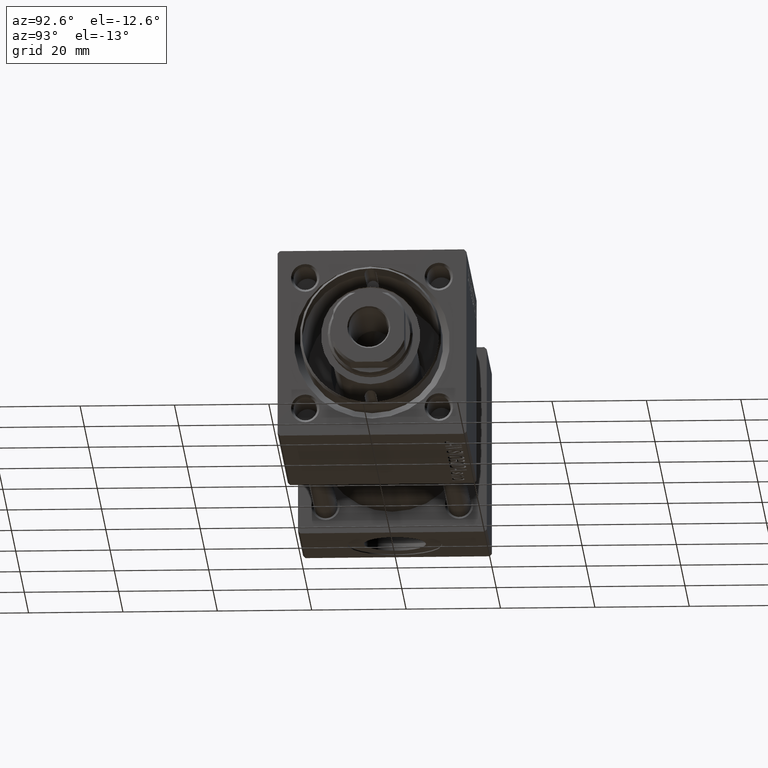
[diagram: clean part render]
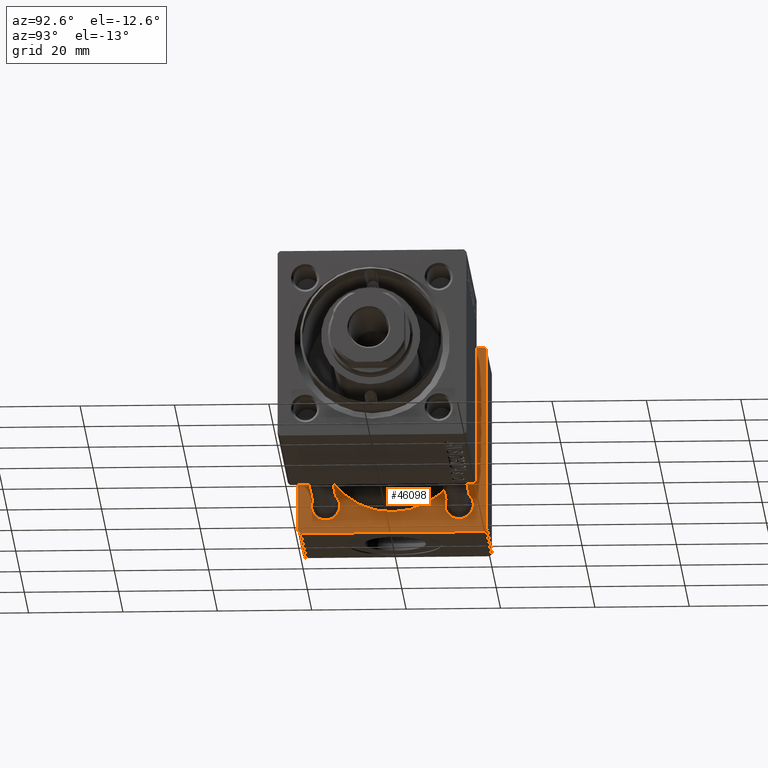
[diagram: same view with one face highlighted and labeled with its STEP entity id]
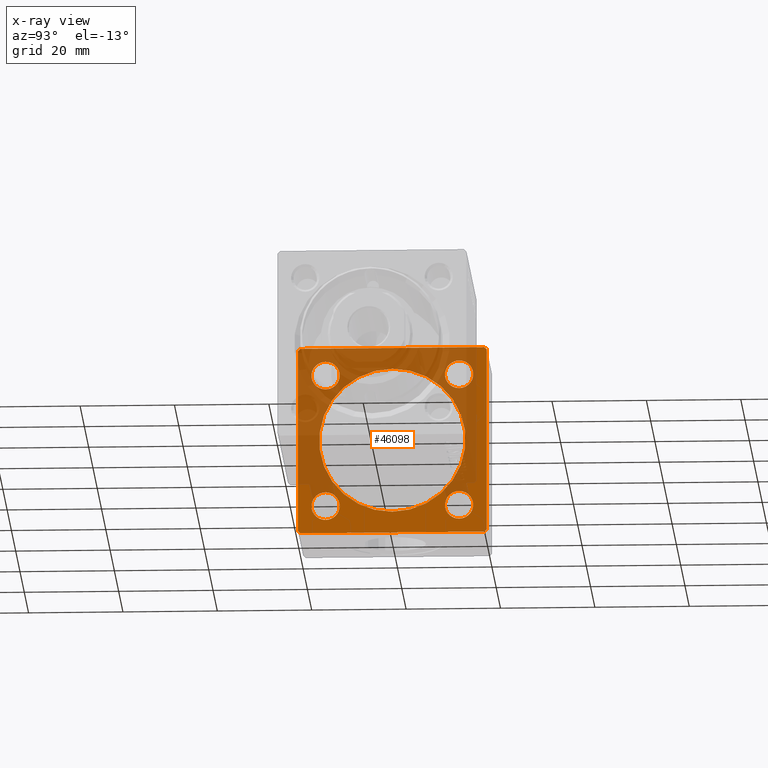
[diagram: x-ray of the same camera — body ghosted, the highlighted face saturated]
A machine part, auxiliary view. The second image highlights one B-rep face of the part: STEP entity #46098.
The next image is the same camera in x-ray: the body ghosted, the highlighted face saturated — about 58% of this face is hidden behind the body in this view.
In plain terms, the highlighted planar face has unit normal (-1, 0, 0).
Its self-contained STEP definition (entity closure, byte-faithful):
#34 = LINE ( 'NONE', #50561, #6078 ) ;
#127 = ORIENTED_EDGE ( 'NONE', *, *, #21536, .T. ) ;
#406 = CARTESIAN_POINT ( 'NONE',  ( 24.00000000000000000, -2.602085213965210642E-15, 0.000000000000000000 ) ) ;
#466 = DIRECTION ( 'NONE',  ( 0.000000000000000000, 0.000000000000000000, -1.000000000000000000 ) ) ;
#601 = EDGE_CURVE ( 'NONE', #17372, #18268, #19815, .T. ) ;
#987 = FACE_BOUND ( 'NONE', #42098, .T. ) ;
#1795 = VECTOR ( 'NONE', #466, 1000.000000000000000 ) ;
#1876 = ORIENTED_EDGE ( 'NONE', *, *, #46301, .F. ) ;
#2228 = ORIENTED_EDGE ( 'NONE', *, *, #38815, .F. ) ;
#3173 = VERTEX_POINT ( 'NONE', #29959 ) ;
#3317 = DIRECTION ( 'NONE',  ( 1.000000000000000000, 0.000000000000000000, 0.000000000000000000 ) ) ;
#3666 = EDGE_CURVE ( 'NONE', #29226, #18973, #41905, .T. ) ;
#4264 = DIRECTION ( 'NONE',  ( 0.000000000000000000, 0.000000000000000000, 1.000000000000000000 ) ) ;
#4424 = AXIS2_PLACEMENT_3D ( 'NONE', #40751, #7679, #32872 ) ;
#5197 = PLANE ( 'NONE',  #46531 ) ;
#5611 = CARTESIAN_POINT ( 'NONE',  ( 24.00000000000000000, 14.14999999999999858, 17.14999999999997726 ) ) ;
#5848 = AXIS2_PLACEMENT_3D ( 'NONE', #15680, #31696, #11735 ) ;
#5975 = FACE_BOUND ( 'NONE', #30871, .T. ) ;
#6078 = VECTOR ( 'NONE', #20032, 1000.000000000000000 ) ;
#6337 = CARTESIAN_POINT ( 'NONE',  ( 24.00000000000000000, 19.50000000000000000, 20.00000000000000000 ) ) ;
#6348 = CARTESIAN_POINT ( 'NONE',  ( 24.00000000000000000, -14.14999999999999503, -17.15000000000000924 ) ) ;
#7093 = AXIS2_PLACEMENT_3D ( 'NONE', #406, #3317, #15429 ) ;
#7154 = VECTOR ( 'NONE', #11166, 1000.000000000000000 ) ;
#7220 = CIRCLE ( 'NONE', #51686, 3.000000000000004441 ) ;
#7679 = DIRECTION ( 'NONE',  ( 1.000000000000000000, 0.000000000000000000, 0.000000000000000000 ) ) ;
#8106 = CARTESIAN_POINT ( 'NONE',  ( 24.00000000000000000, -19.49999999999999289, 19.99999999999998934 ) ) ;
#8350 = VERTEX_POINT ( 'NONE', #5611 ) ;
#8463 = ORIENTED_EDGE ( 'NONE', *, *, #601, .F. ) ;
#8990 = EDGE_LOOP ( 'NONE', ( #41501, #26342 ) ) ;
#9334 = EDGE_CURVE ( 'NONE', #12104, #48971, #42880, .T. ) ;
#10037 = DIRECTION ( 'NONE',  ( 0.000000000000000000, 0.000000000000000000, 1.000000000000000000 ) ) ;
#10206 = CARTESIAN_POINT ( 'NONE',  ( 24.00000000000000000, -14.14999999999999503, 14.15000000000000391 ) ) ;
#10306 = CARTESIAN_POINT ( 'NONE',  ( 24.00000000000000000, -14.14999999999999503, -14.15000000000000391 ) ) ;
#10340 = CIRCLE ( 'NONE', #4424, 15.50000000000000000 ) ;
#10576 = CARTESIAN_POINT ( 'NONE',  ( 24.00000000000000000, -20.00000000000000355, 19.49999999999998224 ) ) ;
#11091 = ORIENTED_EDGE ( 'NONE', *, *, #36582, .T. ) ;
#11166 = DIRECTION ( 'NONE',  ( 0.000000000000000000, -1.000000000000000000, -2.602085213965210149E-16 ) ) ;
#11317 = EDGE_CURVE ( 'NONE', #50640, #51767, #13711, .T. ) ;
#11735 = DIRECTION ( 'NONE',  ( 0.000000000000000000, 0.000000000000000000, 1.000000000000000000 ) ) ;
#11981 = EDGE_LOOP ( 'NONE', ( #8463, #27386, #2228, #25889, #127, #34070, #48522, #11091 ) ) ;
#12104 = VERTEX_POINT ( 'NONE', #34643 ) ;
#13038 = CARTESIAN_POINT ( 'NONE',  ( 24.00000000000000000, 19.50000000000000000, 20.00000000000000000 ) ) ;
#13053 = CARTESIAN_POINT ( 'NONE',  ( 24.00000000000000000, -14.14999999999999503, -14.15000000000000391 ) ) ;
#13637 = CIRCLE ( 'NONE', #28735, 3.000000000000004441 ) ;
#13711 = LINE ( 'NONE', #6337, #27062 ) ;
#13877 = FACE_OUTER_BOUND ( 'NONE', #11981, .T. ) ;
#13978 = DIRECTION ( 'NONE',  ( 0.000000000000000000, -0.7071067811865425767, 0.7071067811865525687 ) ) ;
#14543 = CARTESIAN_POINT ( 'NONE',  ( 24.00000000000000000, -7.038826752868131828E-16, -15.50000000000000000 ) ) ;
#15429 = DIRECTION ( 'NONE',  ( 0.000000000000000000, 0.000000000000000000, 1.000000000000000000 ) ) ;
#15467 = VERTEX_POINT ( 'NONE', #49490 ) ;
#15680 = CARTESIAN_POINT ( 'NONE',  ( 24.00000000000000000, -14.14999999999999503, 14.15000000000000391 ) ) ;
#16332 = CARTESIAN_POINT ( 'NONE',  ( 24.00000000000000000, -20.00000000000000355, 19.49999999999998224 ) ) ;
#16853 = AXIS2_PLACEMENT_3D ( 'NONE', #36352, #31131, #43703 ) ;
#17070 = VECTOR ( 'NONE', #51825, 1000.000000000000000 ) ;
#17282 = CARTESIAN_POINT ( 'NONE',  ( 24.00000000000000000, 14.14999999999999858, -14.15000000000000036 ) ) ;
#17372 = VERTEX_POINT ( 'NONE', #25472 ) ;
#17540 = CARTESIAN_POINT ( 'NONE',  ( 24.00000000000000000, -19.50000000000000711, -20.00000000000000000 ) ) ;
#17550 = CARTESIAN_POINT ( 'NONE',  ( 24.00000000000000000, 20.00000000000000000, 19.49999999999999289 ) ) ;
#17709 = EDGE_CURVE ( 'NONE', #17372, #42274, #25925, .T. ) ;
#17941 = CIRCLE ( 'NONE', #23826, 2.999999999999976463 ) ;
#18007 = ORIENTED_EDGE ( 'NONE', *, *, #41113, .T. ) ;
#18056 = DIRECTION ( 'NONE',  ( -0.000000000000000000, 0.7071067811865524577, 0.7071067811865426878 ) ) ;
#18268 = VERTEX_POINT ( 'NONE', #17540 ) ;
#18299 = EDGE_CURVE ( 'NONE', #15467, #37934, #17941, .T. ) ;
#18579 = ORIENTED_EDGE ( 'NONE', *, *, #25805, .T. ) ;
#18862 = VECTOR ( 'NONE', #28928, 1000.000000000000114 ) ;
#18973 = VERTEX_POINT ( 'NONE', #43617 ) ;
#19177 = EDGE_LOOP ( 'NONE', ( #39412, #18579 ) ) ;
#19311 = LINE ( 'NONE', #16332, #18862 ) ;
#19815 = LINE ( 'NONE', #35821, #17070 ) ;
#19864 = ORIENTED_EDGE ( 'NONE', *, *, #9334, .T. ) ;
#20032 = DIRECTION ( 'NONE',  ( 0.000000000000000000, 8.673617379884036705E-17, -1.000000000000000000 ) ) ;
#20240 = VERTEX_POINT ( 'NONE', #10576 ) ;
#20268 = AXIS2_PLACEMENT_3D ( 'NONE', #10306, #38142, #10037 ) ;
#20579 = VERTEX_POINT ( 'NONE', #8106 ) ;
#20861 = CARTESIAN_POINT ( 'NONE',  ( 24.00000000000000000, 14.14999999999999858, 14.15000000000000036 ) ) ;
#21226 = DIRECTION ( 'NONE',  ( -1.000000000000000000, -0.000000000000000000, -0.000000000000000000 ) ) ;
#21536 = EDGE_CURVE ( 'NONE', #51767, #20579, #31115, .T. ) ;
#22297 = DIRECTION ( 'NONE',  ( -1.000000000000000000, -0.000000000000000000, -0.000000000000000000 ) ) ;
#22349 = LINE ( 'NONE', #30484, #31217 ) ;
#23826 = AXIS2_PLACEMENT_3D ( 'NONE', #17282, #21226, #45344 ) ;
#25174 = DIRECTION ( 'NONE',  ( -0.000000000000000000, 0.000000000000000000, 1.000000000000000000 ) ) ;
#25472 = CARTESIAN_POINT ( 'NONE',  ( 24.00000000000000000, 19.50000000000000711, -20.00000000000000711 ) ) ;
#25805 = EDGE_CURVE ( 'NONE', #8350, #47797, #45044, .T. ) ;
#25889 = ORIENTED_EDGE ( 'NONE', *, *, #11317, .T. ) ;
#25925 = LINE ( 'NONE', #38522, #32167 ) ;
#26342 = ORIENTED_EDGE ( 'NONE', *, *, #38222, .T. ) ;
#27061 = DIRECTION ( 'NONE',  ( 0.000000000000000000, 0.7071067811865401342, -0.7071067811865549002 ) ) ;
#27062 = VECTOR ( 'NONE', #13978, 999.9999999999998863 ) ;
#27263 = EDGE_CURVE ( 'NONE', #48971, #12104, #7220, .T. ) ;
#27386 = ORIENTED_EDGE ( 'NONE', *, *, #17709, .T. ) ;
#27829 = LINE ( 'NONE', #36207, #1795 ) ;
#28191 = ORIENTED_EDGE ( 'NONE', *, *, #3666, .T. ) ;
#28448 = CARTESIAN_POINT ( 'NONE',  ( 24.00000000000000000, 14.14999999999999858, 14.15000000000000036 ) ) ;
#28735 = AXIS2_PLACEMENT_3D ( 'NONE', #10206, #22297, #33850 ) ;
#28928 = DIRECTION ( 'NONE',  ( -0.000000000000000000, -0.7071067811865500152, -0.7071067811865451302 ) ) ;
#29226 = VERTEX_POINT ( 'NONE', #35959 ) ;
#29377 = FACE_BOUND ( 'NONE', #8990, .T. ) ;
#29903 = CARTESIAN_POINT ( 'NONE',  ( 24.00000000000000000, 0.000000000000000000, 0.000000000000000000 ) ) ;
#29959 = CARTESIAN_POINT ( 'NONE',  ( 24.00000000000000000, -2.602085213965210642E-15, 15.50000000000000000 ) ) ;
#30484 = CARTESIAN_POINT ( 'NONE',  ( 24.00000000000000000, -19.50000000000000711, -20.00000000000000000 ) ) ;
#30871 = EDGE_LOOP ( 'NONE', ( #18007, #28191 ) ) ;
#31115 = LINE ( 'NONE', #47106, #7154 ) ;
#31131 = DIRECTION ( 'NONE',  ( -1.000000000000000000, -0.000000000000000000, -0.000000000000000000 ) ) ;
#31217 = VECTOR ( 'NONE', #27061, 1000.000000000000000 ) ;
#31423 = VERTEX_POINT ( 'NONE', #14543 ) ;
#31516 = CIRCLE ( 'NONE', #38224, 2.999999999999973355 ) ;
#31696 = DIRECTION ( 'NONE',  ( -1.000000000000000000, -0.000000000000000000, -0.000000000000000000 ) ) ;
#31881 = ORIENTED_EDGE ( 'NONE', *, *, #42800, .F. ) ;
#32167 = VECTOR ( 'NONE', #18056, 1000.000000000000000 ) ;
#32872 = DIRECTION ( 'NONE',  ( 0.000000000000000000, 0.000000000000000000, 1.000000000000000000 ) ) ;
#33464 = EDGE_LOOP ( 'NONE', ( #35053, #19864 ) ) ;
#33783 = CARTESIAN_POINT ( 'NONE',  ( 24.00000000000000000, 20.00000000000000000, -19.50000000000002132 ) ) ;
#33850 = DIRECTION ( 'NONE',  ( 0.000000000000000000, 0.000000000000000000, 1.000000000000000000 ) ) ;
#34070 = ORIENTED_EDGE ( 'NONE', *, *, #46685, .T. ) ;
#34130 = CARTESIAN_POINT ( 'NONE',  ( 24.00000000000000000, -20.00000000000000000, -19.49999999999999645 ) ) ;
#34643 = CARTESIAN_POINT ( 'NONE',  ( 24.00000000000000000, -14.14999999999999503, -11.15000000000000036 ) ) ;
#35053 = ORIENTED_EDGE ( 'NONE', *, *, #27263, .T. ) ;
#35821 = CARTESIAN_POINT ( 'NONE',  ( 24.00000000000000000, 20.00000000000000000, -20.00000000000000711 ) ) ;
#35905 = CARTESIAN_POINT ( 'NONE',  ( 24.00000000000000000, 14.14999999999999858, -11.15000000000002700 ) ) ;
#35959 = CARTESIAN_POINT ( 'NONE',  ( 24.00000000000000000, -14.14999999999999503, 17.15000000000000924 ) ) ;
#36207 = CARTESIAN_POINT ( 'NONE',  ( 24.00000000000000000, 20.00000000000000000, 20.00000000000000000 ) ) ;
#36352 = CARTESIAN_POINT ( 'NONE',  ( 24.00000000000000000, 14.14999999999999858, -14.15000000000000036 ) ) ;
#36582 = EDGE_CURVE ( 'NONE', #47420, #18268, #22349, .T. ) ;
#36861 = DIRECTION ( 'NONE',  ( -1.000000000000000000, -0.000000000000000000, -0.000000000000000000 ) ) ;
#37320 = CIRCLE ( 'NONE', #7093, 15.50000000000000000 ) ;
#37665 = CARTESIAN_POINT ( 'NONE',  ( 24.00000000000000000, 14.14999999999999858, 11.15000000000002700 ) ) ;
#37934 = VERTEX_POINT ( 'NONE', #35905 ) ;
#38142 = DIRECTION ( 'NONE',  ( -1.000000000000000000, -0.000000000000000000, -0.000000000000000000 ) ) ;
#38222 = EDGE_CURVE ( 'NONE', #37934, #15467, #39489, .T. ) ;
#38224 = AXIS2_PLACEMENT_3D ( 'NONE', #28448, #40250, #4264 ) ;
#38522 = CARTESIAN_POINT ( 'NONE',  ( 24.00000000000000000, 20.00000000000000000, -19.50000000000002132 ) ) ;
#38815 = EDGE_CURVE ( 'NONE', #50640, #42274, #27829, .T. ) ;
#39412 = ORIENTED_EDGE ( 'NONE', *, *, #48760, .T. ) ;
#39489 = CIRCLE ( 'NONE', #16853, 2.999999999999976463 ) ;
#40250 = DIRECTION ( 'NONE',  ( -1.000000000000000000, -0.000000000000000000, -0.000000000000000000 ) ) ;
#40617 = DIRECTION ( 'NONE',  ( 0.000000000000000000, 0.000000000000000000, 1.000000000000000000 ) ) ;
#40751 = CARTESIAN_POINT ( 'NONE',  ( 24.00000000000000000, -2.602085213965210642E-15, 0.000000000000000000 ) ) ;
#40857 = AXIS2_PLACEMENT_3D ( 'NONE', #20861, #36861, #41312 ) ;
#41113 = EDGE_CURVE ( 'NONE', #18973, #29226, #13637, .T. ) ;
#41176 = FACE_BOUND ( 'NONE', #33464, .T. ) ;
#41312 = DIRECTION ( 'NONE',  ( 0.000000000000000000, 0.000000000000000000, 1.000000000000000000 ) ) ;
#41383 = EDGE_CURVE ( 'NONE', #20240, #47420, #34, .T. ) ;
#41501 = ORIENTED_EDGE ( 'NONE', *, *, #18299, .T. ) ;
#41905 = CIRCLE ( 'NONE', #5848, 3.000000000000004441 ) ;
#42098 = EDGE_LOOP ( 'NONE', ( #1876, #31881 ) ) ;
#42274 = VERTEX_POINT ( 'NONE', #33783 ) ;
#42800 = EDGE_CURVE ( 'NONE', #31423, #3173, #10340, .T. ) ;
#42880 = CIRCLE ( 'NONE', #20268, 3.000000000000004441 ) ;
#43617 = CARTESIAN_POINT ( 'NONE',  ( 24.00000000000000000, -14.14999999999999503, 11.15000000000000036 ) ) ;
#43703 = DIRECTION ( 'NONE',  ( 0.000000000000000000, 0.000000000000000000, 1.000000000000000000 ) ) ;
#45044 = CIRCLE ( 'NONE', #40857, 2.999999999999973355 ) ;
#45344 = DIRECTION ( 'NONE',  ( 0.000000000000000000, 0.000000000000000000, 1.000000000000000000 ) ) ;
#45895 = DIRECTION ( 'NONE',  ( -1.000000000000000000, 0.000000000000000000, -0.000000000000000000 ) ) ;
#46098 = ADVANCED_FACE ( 'NONE', ( #41176, #29377, #5975, #49049, #987, #13877 ), #5197, .F. ) ;
#46301 = EDGE_CURVE ( 'NONE', #3173, #31423, #37320, .T. ) ;
#46531 = AXIS2_PLACEMENT_3D ( 'NONE', #29903, #45895, #25174 ) ;
#46685 = EDGE_CURVE ( 'NONE', #20579, #20240, #19311, .T. ) ;
#47106 = CARTESIAN_POINT ( 'NONE',  ( 24.00000000000000000, 20.00000000000000000, 20.00000000000000000 ) ) ;
#47420 = VERTEX_POINT ( 'NONE', #34130 ) ;
#47797 = VERTEX_POINT ( 'NONE', #37665 ) ;
#48522 = ORIENTED_EDGE ( 'NONE', *, *, #41383, .T. ) ;
#48760 = EDGE_CURVE ( 'NONE', #47797, #8350, #31516, .T. ) ;
#48971 = VERTEX_POINT ( 'NONE', #6348 ) ;
#49049 = FACE_BOUND ( 'NONE', #19177, .T. ) ;
#49265 = DIRECTION ( 'NONE',  ( -1.000000000000000000, -0.000000000000000000, -0.000000000000000000 ) ) ;
#49490 = CARTESIAN_POINT ( 'NONE',  ( 24.00000000000000000, 14.14999999999999858, -17.14999999999997726 ) ) ;
#50561 = CARTESIAN_POINT ( 'NONE',  ( 24.00000000000000000, -20.00000000000000355, 19.99999999999998934 ) ) ;
#50640 = VERTEX_POINT ( 'NONE', #17550 ) ;
#51686 = AXIS2_PLACEMENT_3D ( 'NONE', #13053, #49265, #40617 ) ;
#51767 = VERTEX_POINT ( 'NONE', #13038 ) ;
#51825 = DIRECTION ( 'NONE',  ( 0.000000000000000000, -1.000000000000000000, 1.734723475976807094E-16 ) ) ;